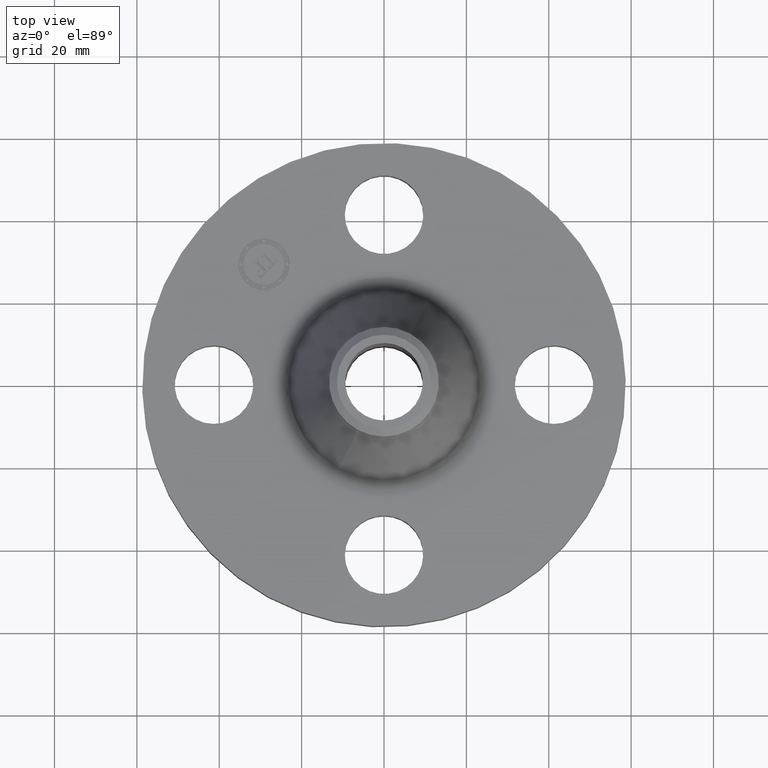
[diagram: clean part render]
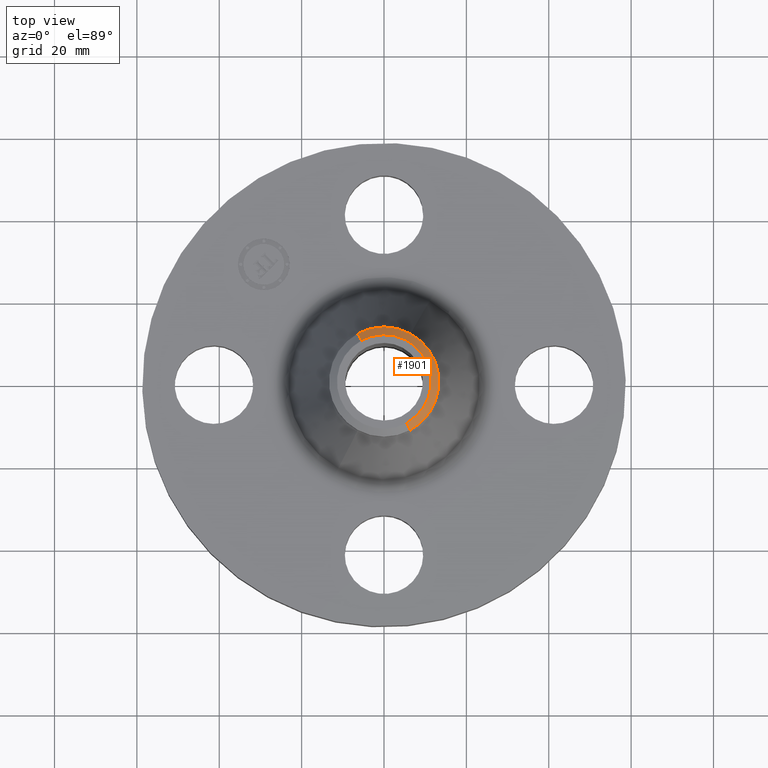
[diagram: same view with one face highlighted and labeled with its STEP entity id]
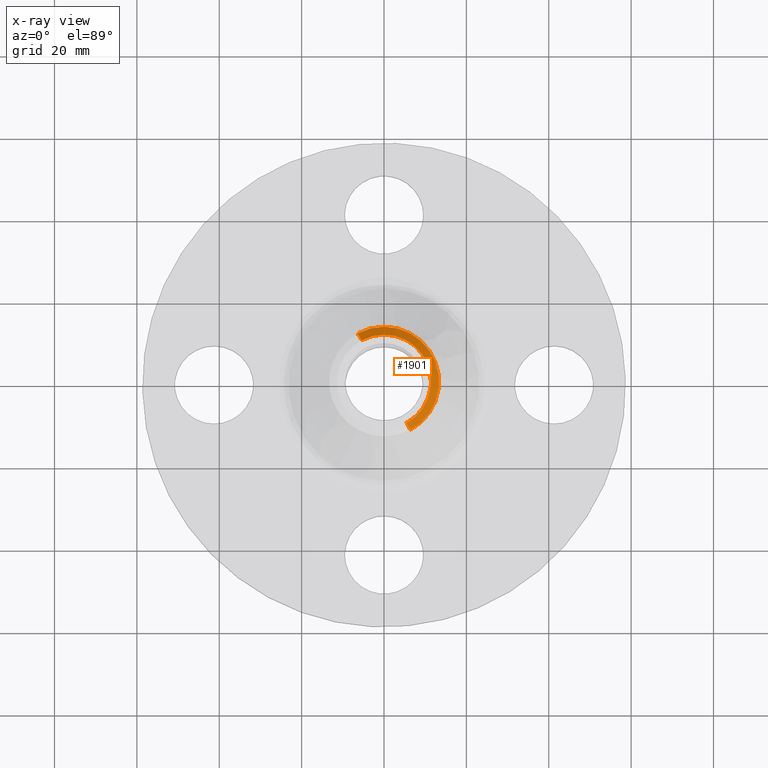
[diagram: x-ray of the same camera — body ghosted, the highlighted face saturated]
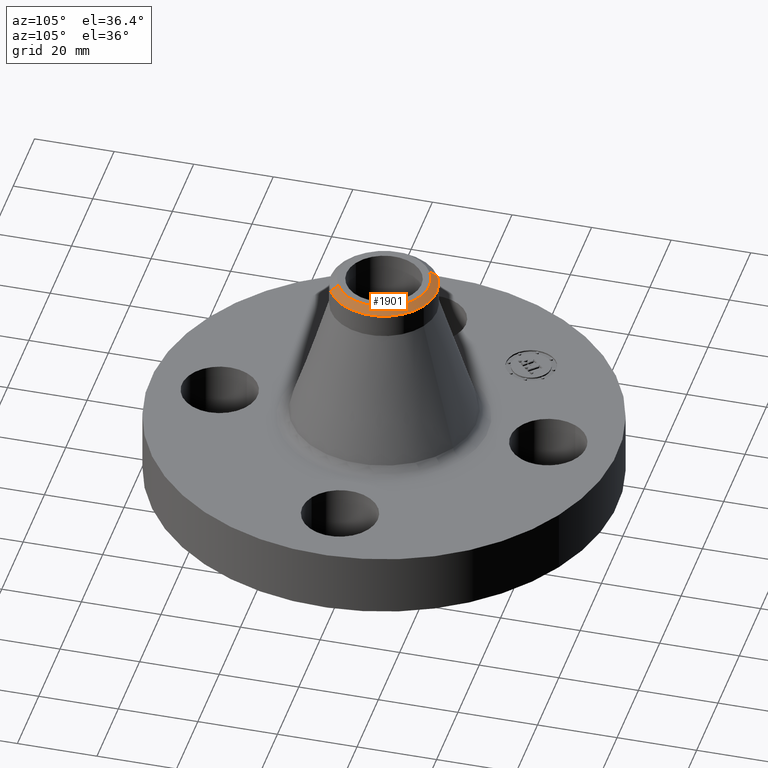
[diagram: same view with one face highlighted and labeled with its STEP entity id]
A machine part, top view. The second image highlights one B-rep face of the part: STEP entity #1901.
The next image is the same camera in x-ray: the body ghosted, the highlighted face saturated — about 0% of this face is hidden behind the body in this view.
A second angle (auxiliary view) of the same face is appended — the face is thin or edge-on in the first view.
In plain terms, the highlighted conical surface has half-angle 52.5 deg.
Its self-contained STEP definition (entity closure, byte-faithful):
#1169=AXIS2_PLACEMENT_3D('Circle Axis2P3D',#1167,#1168,$) ;
#1887=AXIS2_PLACEMENT_3D('Cone Axis2P3D',#1884,#1885,#1886) ;
#1891=AXIS2_PLACEMENT_3D('Circle Axis2P3D',#1889,#1890,$) ;
#1150=CARTESIAN_POINT('Vertex',(0.251698407768,0.460730844994,2.19225109172)) ;
#1164=CARTESIAN_POINT('Vertex',(-0.251698407768,0.460730844994,2.19225109172)) ;
#1167=CARTESIAN_POINT('Axis2P3D Location',(0.,0.,2.19225109172)) ;
#1193=CARTESIAN_POINT('Control Point',(0.251698407768,0.460730844994,2.19225109173)) ;
#1194=CARTESIAN_POINT('Control Point',(0.35036818706,0.406827298894,2.19225109173)) ;
#1195=CARTESIAN_POINT('Control Point',(0.434608036561,0.326509943487,2.19225109173)) ;
#1196=CARTESIAN_POINT('Control Point',(0.494901624698,0.224867228628,2.19225109173)) ;
#1197=CARTESIAN_POINT('Control Point',(0.555098375306,-1.321296901E-013,2.19225109173)) ;
#1198=CARTESIAN_POINT('Control Point',(0.494901624698,-0.224867228628,2.19225109172)) ;
#1199=CARTESIAN_POINT('Control Point',(0.434608036561,-0.326509943487,2.19225109172)) ;
#1200=CARTESIAN_POINT('Control Point',(0.35036818706,-0.406827298895,2.19225109172)) ;
#1201=CARTESIAN_POINT('Control Point',(0.251698407768,-0.460730844994,2.19225109172)) ;
#1202=CARTESIAN_POINT('Vertex',(0.251698407769,-0.460730844996,2.19225109173)) ;
#1850=CARTESIAN_POINT('Line Origine',(0.2336576625,-0.427707482289,2.22112554587)) ;
#1854=CARTESIAN_POINT('Vertex',(0.215616917233,-0.394684119588,2.25000000001)) ;
#1861=CARTESIAN_POINT('Vertex',(-0.215616917233,0.394684119588,2.25000000001)) ;
#1864=CARTESIAN_POINT('Line Origine',(-0.2336576625,0.427707482289,2.22112554587)) ;
#1884=CARTESIAN_POINT('Axis2P3D Location',(0.,0.,2.25000000001)) ;
#1889=CARTESIAN_POINT('Axis2P3D Location',(0.,0.,2.25000000001)) ;
#1168=DIRECTION('Axis2P3D Direction',(-0.,0.,-0.0393700787402)) ;
#1851=DIRECTION('Vector Direction',(0.014974561121,-0.02741075027,-0.023966985394)) ;
#1865=DIRECTION('Vector Direction',(-0.014974561121,0.02741075027,-0.023966985394)) ;
#1885=DIRECTION('Axis2P3D Direction',(-0.,-0.,-0.0393700787402)) ;
#1886=DIRECTION('Axis2P3D XDirection',(-0.0188750212049,0.0345504945626,0.)) ;
#1890=DIRECTION('Axis2P3D Direction',(-0.,0.,-0.0393700787402)) ;
#1852=VECTOR('Line Direction',#1851,0.0393700787402) ;
#1866=VECTOR('Line Direction',#1865,0.0393700787402) ;
#1895=ORIENTED_EDGE('',*,*,#1868,.F.) ;
#1896=ORIENTED_EDGE('',*,*,#1893,.F.) ;
#1897=ORIENTED_EDGE('',*,*,#1856,.T.) ;
#1898=ORIENTED_EDGE('',*,*,#1204,.T.) ;
#1899=ORIENTED_EDGE('',*,*,#1171,.F.) ;
#1901=ADVANCED_FACE('PartBody',(#1900),#1888,.T.) ;
#1192=B_SPLINE_CURVE_WITH_KNOTS('',5,(#1193,#1194,#1195,#1196,#1197,#1198,#1199,#1200,#1201),.UNSPECIFIED.,.F.,.U.,(6,3,6),(-14.2790690179,0.,14.2790690179),.UNSPECIFIED.) ;
#1170=CIRCLE('generated circle',#1169,0.525000000002) ;
#1892=CIRCLE('generated circle',#1891,0.449740157482) ;
#1888=CONICAL_SURFACE('Cone',#1887,0.449740157482,0.916297857297) ;
#1171=EDGE_CURVE('',#1165,#1151,#1170,.T.) ;
#1204=EDGE_CURVE('',#1203,#1151,#1192,.F.) ;
#1856=EDGE_CURVE('',#1855,#1203,#1853,.T.) ;
#1868=EDGE_CURVE('',#1862,#1165,#1867,.T.) ;
#1893=EDGE_CURVE('',#1855,#1862,#1892,.F.) ;
#1894=EDGE_LOOP('',(#1895,#1896,#1897,#1898,#1899)) ;
#1900=FACE_OUTER_BOUND('',#1894,.T.) ;
#1853=LINE('Line',#1850,#1852) ;
#1867=LINE('Line',#1864,#1866) ;
#1151=VERTEX_POINT('',#1150) ;
#1165=VERTEX_POINT('',#1164) ;
#1203=VERTEX_POINT('',#1202) ;
#1855=VERTEX_POINT('',#1854) ;
#1862=VERTEX_POINT('',#1861) ;